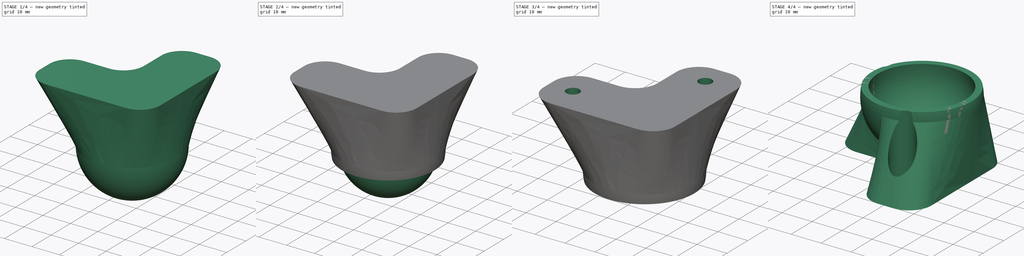
[diagram: build sequence overview — one tinted view per stage of 4, left to right]
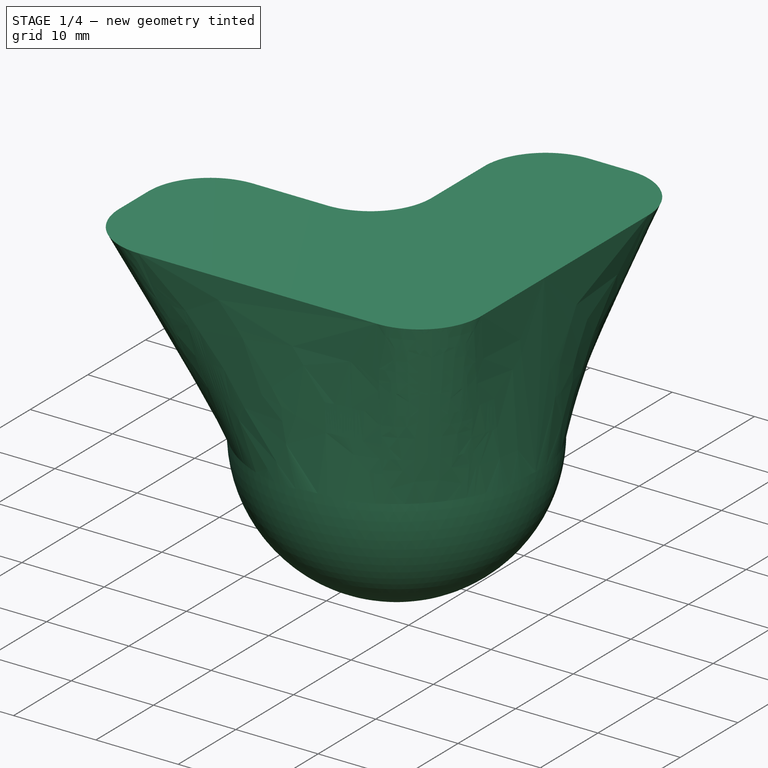
[diagram: stage 1 of 4 — iso view after this stage's code; geometry added in this stage tinted green]
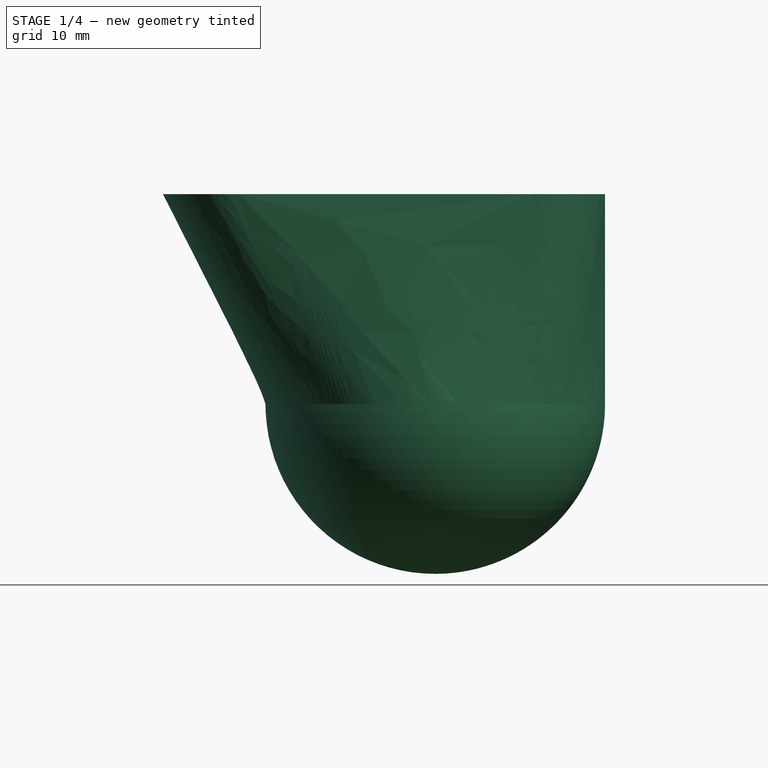
[diagram: stage 1 of 4 — front view after this stage's code; geometry added in this stage tinted green]
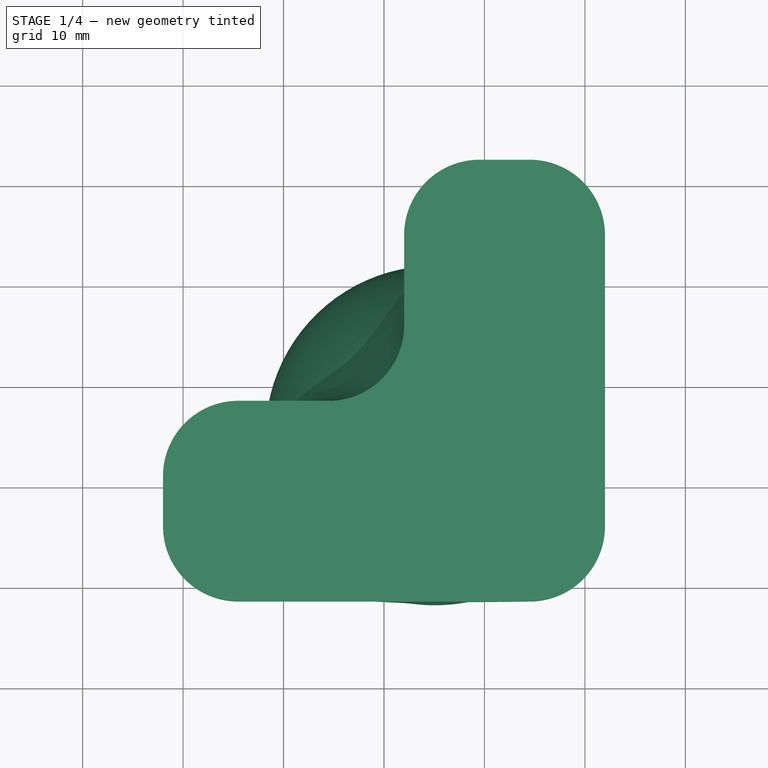
[diagram: stage 1 of 4 — top view after this stage's code; geometry added in this stage tinted green]
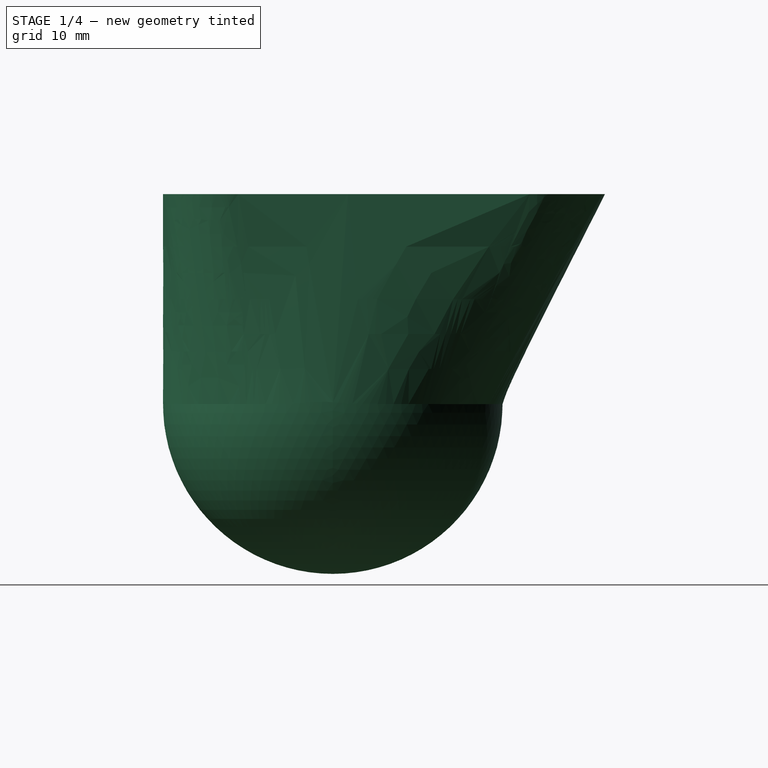
[diagram: stage 1 of 4 — right view after this stage's code; geometry added in this stage tinted green]
FCSTD DOCUMENT  (FreeCAD 0.16R6712 (Git))
Label: RubberBallFoot_2020_90
License: All rights reserved
LicenseURL: http://en.wikipedia.org/wiki/All_rights_reserved
objects: Sketcher::SketchObject×4, Part::Cut×4, Part::Sphere×2, Spreadsheet::Sheet×2, PartDesign::Pad×2, Part::Box×1, Part::Loft×1, Part::MultiFuse×1, Part::FeaturePython×1
note: 18 computed .brp shape members not serialized (recipe doc carries the construction recipe); baked Part::Feature solids carry a one-line shape summary decoded from their .brp

FEATURE [Part::Sphere] Sphere
  Angle1 = -90
  Angle2 = 90
  Angle3 = 360
  Placement = pos=(5.1,-5.1,0) rot=(0,0,1;0rad)
  Radius = 16.9
  expr: Placement.Base.y = -Calc.BallOffset
  expr: Placement.Base.x = Calc.BallOffset
  expr: Radius = Spreadsheet.BallRadius + Spreadsheet.WallThickness
FEATURE [Sketcher::SketchObject] Sketch  label="Circle"
  expr: Constraints[0] = Spreadsheet.BallRadius + Spreadsheet.WallThickness - 0.001
  expr: Constraints[1] = Calc.BallOffset
  expr: Constraints[2] = Calc.BallOffset
  sketch-geometry (1):
    g0: Circle CenterX=5.1 CenterY=-5.1 CenterZ=0 NormalX=0 NormalY=0 NormalZ=1 Radius=16.899
  constraints (3):
    c: Radius(g0) = 16.899
    c: DistanceY(g0,g-1) = 5.1
    c: DistanceX(g-1,g0) = 5.1
FEATURE [Sketcher::SketchObject] Sketch001  label="Rectangle"
  Placement = pos=(0,0,20.9) rot=(0,0,1;0rad)
  expr: Constraints[17] = (Data.ProfileSize - 5) / 2
  expr: Placement.Base.z = Spreadsheet.BallRadius + Spreadsheet.WallThickness + Spreadsheet.ExtraHeight
  sketch-geometry (14):
    g0: LineSegment StartX=22 StartY=14.5 StartZ=0 EndX=22 EndY=-14.5 EndZ=0
    g1: LineSegment StartX=14.5 StartY=-22 StartZ=0 EndX=-14.5 EndY=-22 EndZ=0
    g2: LineSegment StartX=-22 StartY=-14.5 StartZ=0 EndX=-22 EndY=-9.5 EndZ=0
    g3: LineSegment StartX=-14.5 StartY=-2 StartZ=0 EndX=-5.5 EndY=-2 EndZ=0
    g4: LineSegment StartX=2 StartY=5.5 StartZ=0 EndX=2 EndY=14.5 EndZ=0
    g5: LineSegment StartX=9.5 StartY=22 StartZ=0 EndX=14.5 EndY=22 EndZ=0
    g6: ArcOfCircle CenterX=14.5 CenterY=14.5 CenterZ=0 NormalX=0 NormalY=0 NormalZ=1 Radius=7.5 StartAngle=0 EndAngle=1.5708
    g7: ArcOfCircle CenterX=9.5 CenterY=14.5 CenterZ=0 NormalX=0 NormalY=0 NormalZ=1 Radius=7.5 StartAngle=1.5708 EndAngle=3.14159
    g8: ArcOfCircle CenterX=-5.5 CenterY=5.5 CenterZ=0 NormalX=0 NormalY=0 NormalZ=1 Radius=7.5 StartAngle=4.71239 EndAngle=6.28319
    g9: ArcOfCircle CenterX=-14.5 CenterY=-9.5 CenterZ=0 NormalX=0 NormalY=0 NormalZ=1 Radius=7.5 StartAngle=1.5708 EndAngle=3.14159
    g10: ArcOfCircle CenterX=-14.5 CenterY=-14.5 CenterZ=0 NormalX=0 NormalY=0 NormalZ=1 Radius=7.5 StartAngle=3.14159 EndAngle=4.71239
    g11: ArcOfCircle CenterX=14.5 CenterY=-14.5 CenterZ=0 NormalX=0 NormalY=0 NormalZ=1 Radius=7.5 StartAngle=4.71239 EndAngle=6.28319
    g12: LineSegment [constr] StartX=2 StartY=14.5 StartZ=0 EndX=22 EndY=14.5 EndZ=0
    g13: LineSegment [constr] StartX=-14.5 StartY=-22 StartZ=0 EndX=-14.5 EndY=-2 EndZ=0
  constraints (33):
    c: Equal(g0,g1)
    c: Vertical(g2)
    c: Horizontal(g3)
    c: Vertical(g4)
    c: Horizontal(g5)
    c: Tangent(g0,g6) = 1.5708
    c: Tangent(g5,g6) = 1.5708
    c: Tangent(g4,g7) = 1.5708
    c: Tangent(g5,g7) = 1.5708
    c: Tangent(g3,g8) = -1.5708
    c: Tangent(g4,g8) = -1.5708
    c: Tangent(g2,g9) = 1.5708
    c: Tangent(g3,g9) = 1.5708
    c: Tangent(g1,g10) = 1.5708
    c: Tangent(g2,g10) = 1.5708
    c: Tangent(g0,g11) = 1.5708
    c: Tangent(g1,g11) = 1.5708
    c: Radius(g11) = 7.5
    c: Equal(g11,g6)
    c: Equal(g6,g7)
    c: Equal(g7,g8)
    c: Equal(g8,g9)
    c: Equal(g9,g10)
    c: DistanceX(g2,g0) = 44
    c: Symmetric(g1,g1,g-2)
    c: Symmetric(g0,g0,g-1)
    c: Equal(g1,g0)
    c: Coincident(g12,g4)
    c: Coincident(g12,g0)
    c: Coincident(g13,g1)
    c: Coincident(g13,g3)
    c: DistanceY(g13,g13) = 20
    c: Equal(g13,g12)
FEATURE [Part::Loft] Loft
  Closed = false
  Ruled = false
  Sections = -> [Sketch,Sketch001]
  Solid = true
FEATURE [Part::MultiFuse] Fusion
  Shapes = -> [Loft,Sphere]
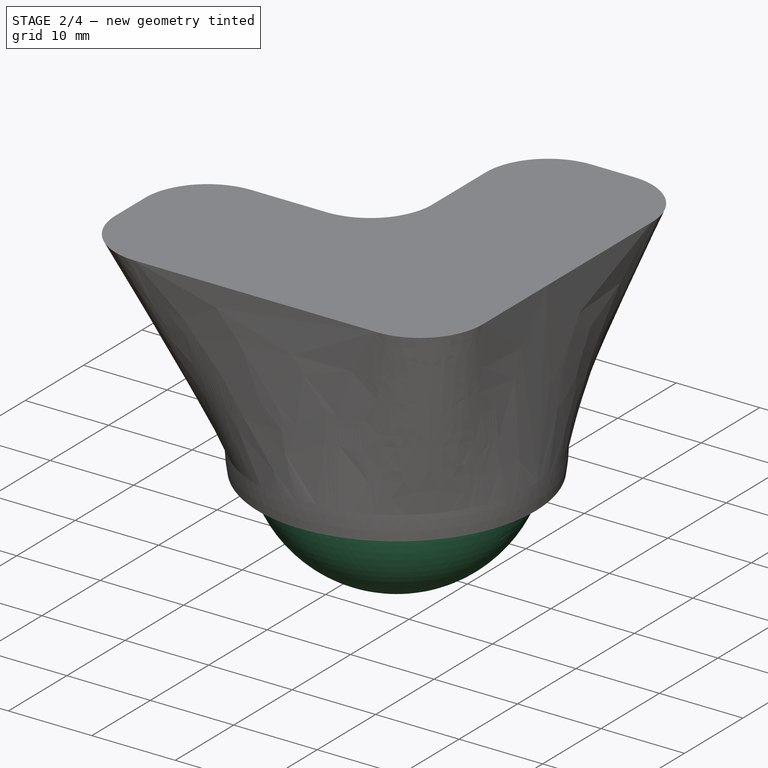
[diagram: stage 2 of 4 — iso view after this stage's code; geometry added in this stage tinted green]
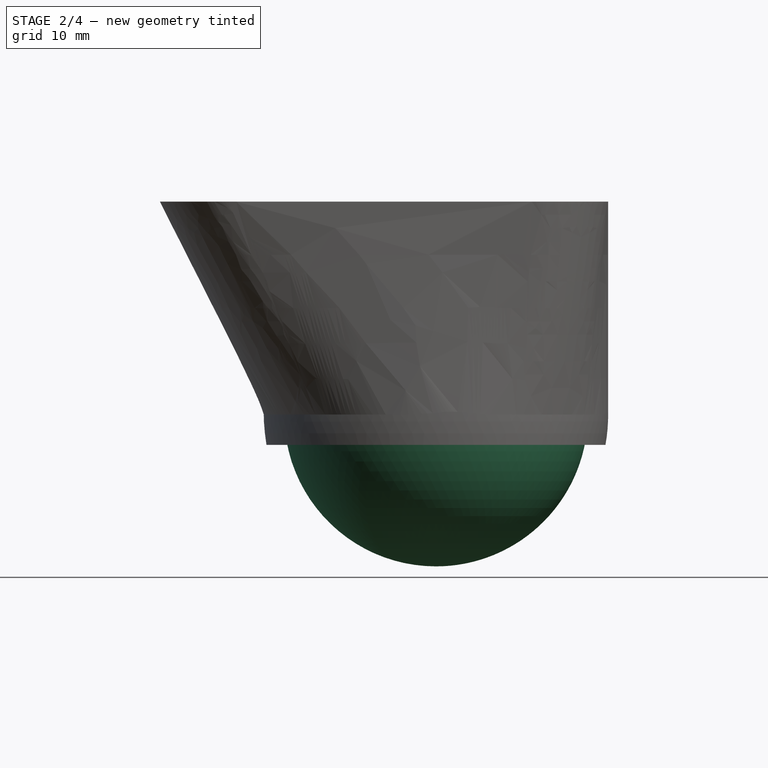
[diagram: stage 2 of 4 — front view after this stage's code; geometry added in this stage tinted green]
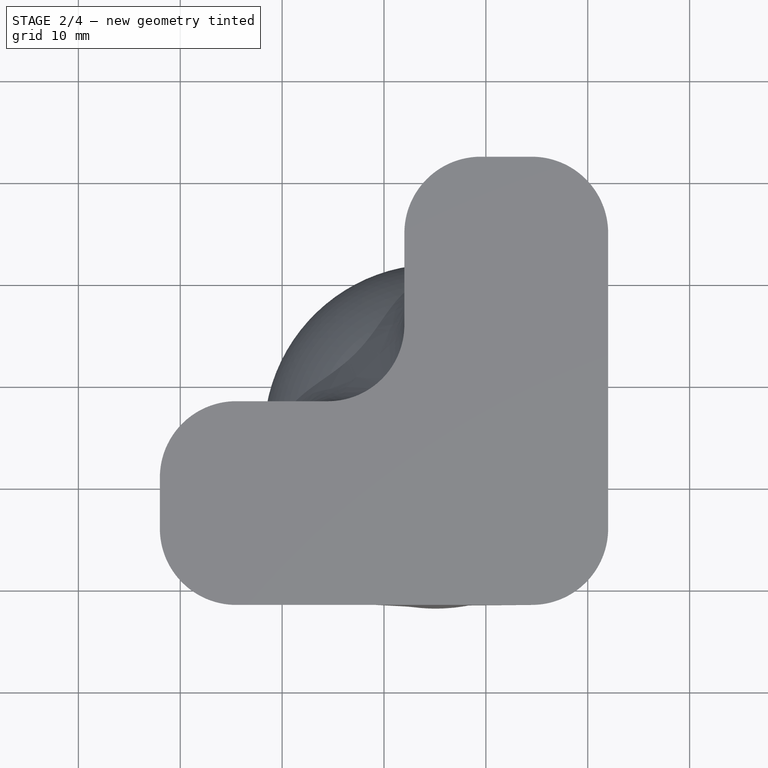
[diagram: stage 2 of 4 — top view after this stage's code; geometry added in this stage tinted green]
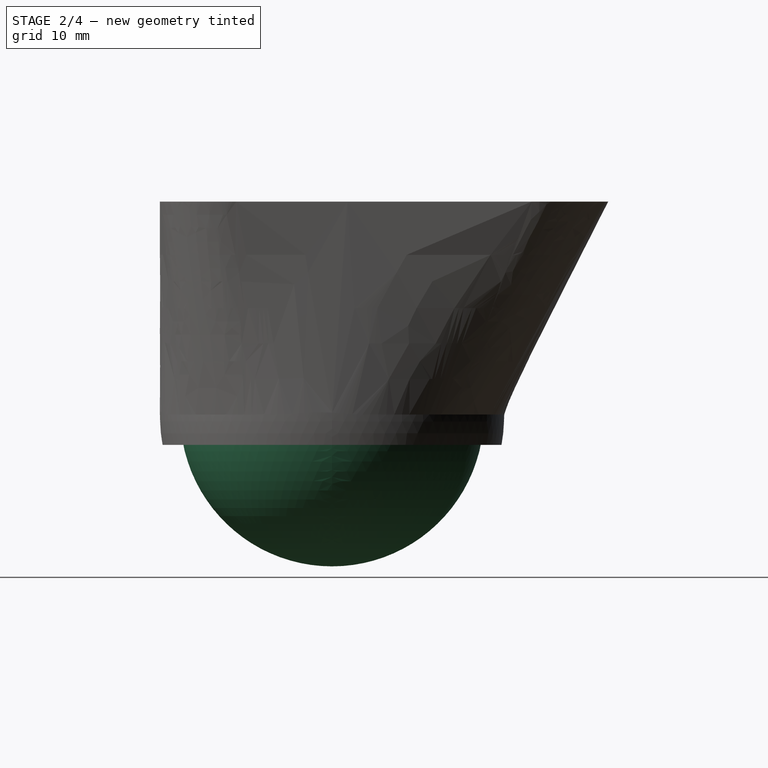
[diagram: stage 2 of 4 — right view after this stage's code; geometry added in this stage tinted green]
FEATURE [Part::Box] Box  label="Cube"
  Height = 33.8
  Length = 33.8
  Placement = pos=(-11.8,-22,-36.78) rot=(0,0,1;0rad)
  Width = 33.8
  expr: Placement.Base.y = -Spreadsheet.BallRadius - Spreadsheet.WallThickness - Calc.BallOffset
  expr: Placement.Base.x = -Spreadsheet.BallRadius - Spreadsheet.WallThickness + Calc.BallOffset
  expr: Width = (Spreadsheet.BallRadius + Spreadsheet.WallThickness) * 2
  expr: Length = (Spreadsheet.BallRadius + Spreadsheet.WallThickness) * 2
  expr: Height = (Spreadsheet.BallRadius + Spreadsheet.WallThickness) * 2
  expr: Placement.Base.z = Calc.CubeOffset
FEATURE [Part::Sphere] Sphere001
  Angle1 = -90
  Angle2 = 90
  Angle3 = 360
  Placement = pos=(5.1,-5.1,0) rot=(0,0,1;0rad)
  Radius = 14.9
  expr: Placement.Base.y = -Calc.BallOffset
  expr: Placement.Base.x = Calc.BallOffset
  expr: Radius = Spreadsheet.BallRadius
FEATURE [Part::Cut] Cut
  Base = -> Fusion
  Tool = -> Box
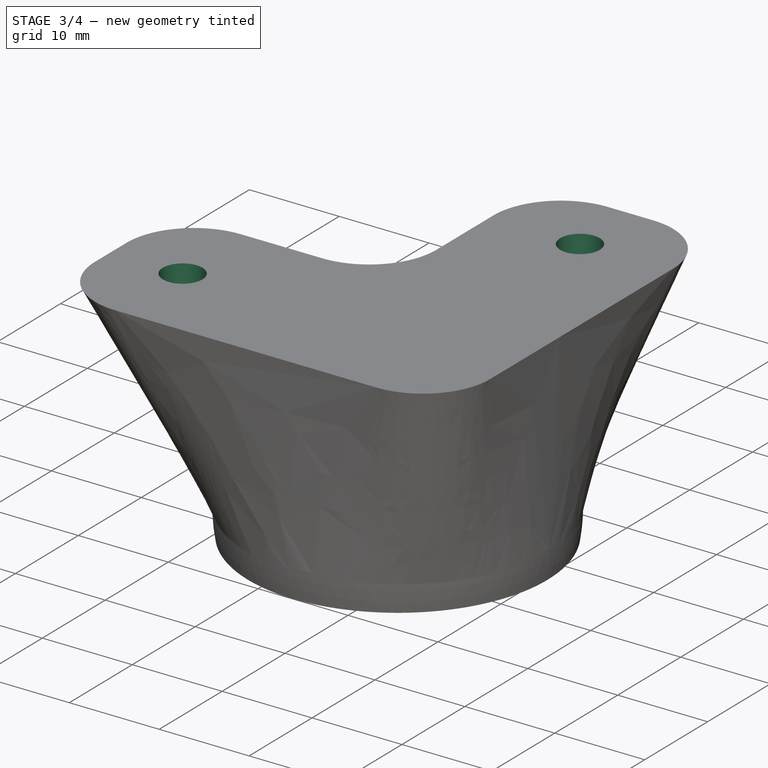
[diagram: stage 3 of 4 — iso view after this stage's code; geometry added in this stage tinted green]
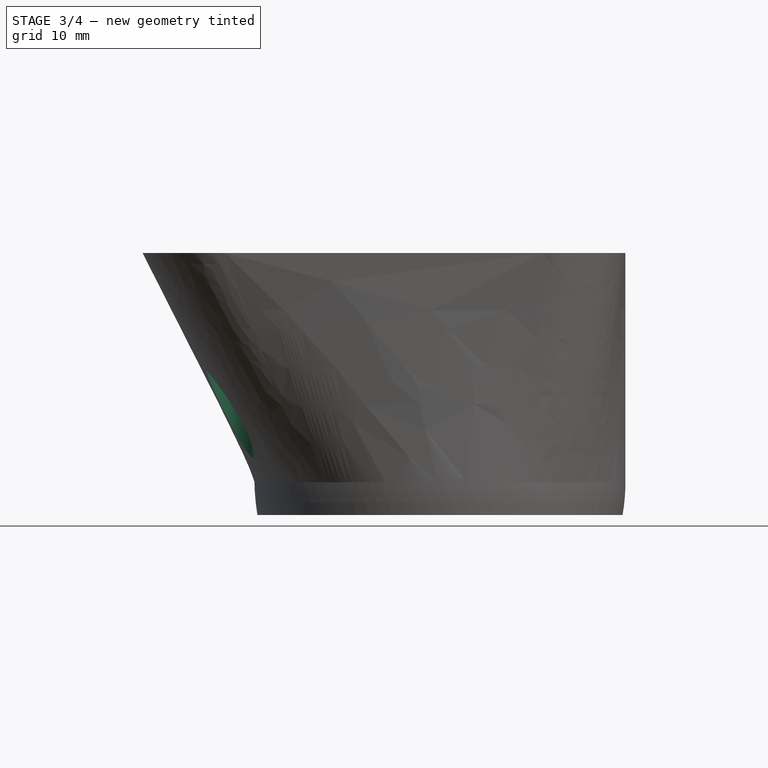
[diagram: stage 3 of 4 — front view after this stage's code; geometry added in this stage tinted green]
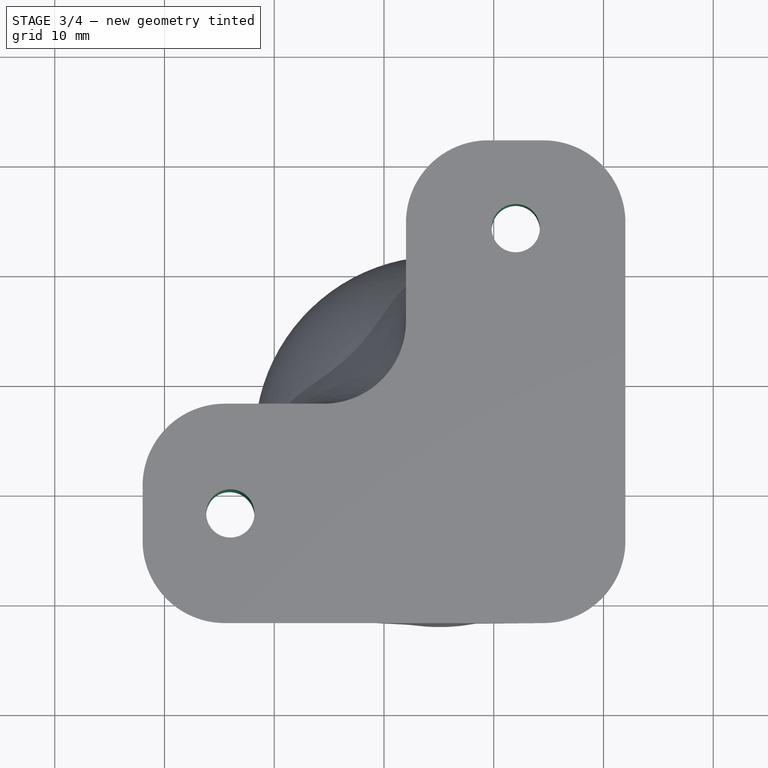
[diagram: stage 3 of 4 — top view after this stage's code; geometry added in this stage tinted green]
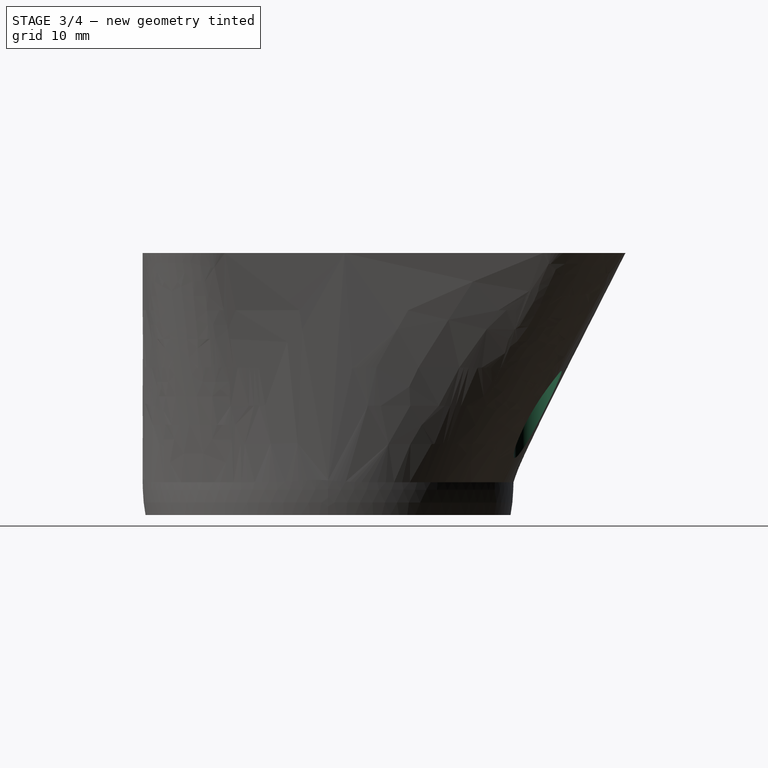
[diagram: stage 3 of 4 — right view after this stage's code; geometry added in this stage tinted green]
FEATURE [Sketcher::SketchObject] Sketch004  label="ScrewHoles"
  Placement = pos=(0,0,-2.98) rot=(0,0,1;0rad)
  expr: Constraints[18] = Spreadsheet.HoleOffset
  expr: Constraints[14] = Calc.BaseSize
  expr: Placement.Base.z = -Spreadsheet.BallRadius * Spreadsheet.cover / 100
  expr: Constraints[16] = Spreadsheet.ProfileSize / 2
  sketch-geometry (6):
    g0: Circle CenterX=12 CenterY=14 CenterZ=0 NormalX=0 NormalY=0 NormalZ=1 Radius=2.2
    g1: Circle CenterX=-14 CenterY=-12 CenterZ=0 NormalX=0 NormalY=0 NormalZ=1 Radius=2.2
    g2: LineSegment [constr] StartX=-22 StartY=22 StartZ=0 EndX=22 EndY=22 EndZ=0
    g3: LineSegment [constr] StartX=22 StartY=22 StartZ=0 EndX=22 EndY=-22 EndZ=0
    g4: LineSegment [constr] StartX=22 StartY=-22 StartZ=0 EndX=-22 EndY=-22 EndZ=0
    g5: LineSegment [constr] StartX=-22 StartY=-22 StartZ=0 EndX=-22 EndY=22 EndZ=0
  constraints (19):
    c: Equal(g0,g1)
    c: Radius(g0) = 2.2
    c: Coincident(g2,g3)
    c: Coincident(g3,g4)
    c: Coincident(g4,g5)
    c: Coincident(g5,g2)
    c: Horizontal(g2)
    c: Horizontal(g4)
    c: Vertical(g3)
    c: Vertical(g5)
    c: Symmetric(g2,g3,g-1)
    c: Equal(g2,g5)
    c: Equal(g5,g3)
    c: Equal(g3,g4)
    c: DistanceX(g2,g2) = 44
    c: DistanceY(g0,g2) = 8
    c: DistanceY(g3,g1) = 10
    c: DistanceX(g0,g2) = 10
    c: DistanceX(g4,g1) = 8
FEATURE [PartDesign::Pad] Pad001
  Length = 23.88
  Length2 = 100
  Placement = pos=(0,0,-2.98) rot=(0,0,1;0rad)
  Sketch = -> Sketch004
  Type = 0
  expr: Length = Calc.TotalHeight
FEATURE [Part::Cut] Cut001
  Base = -> Cut
  Tool = -> Sphere001
FEATURE [Part::Cut] Cut002
  Base = -> Cut001
  Tool = -> Pad001
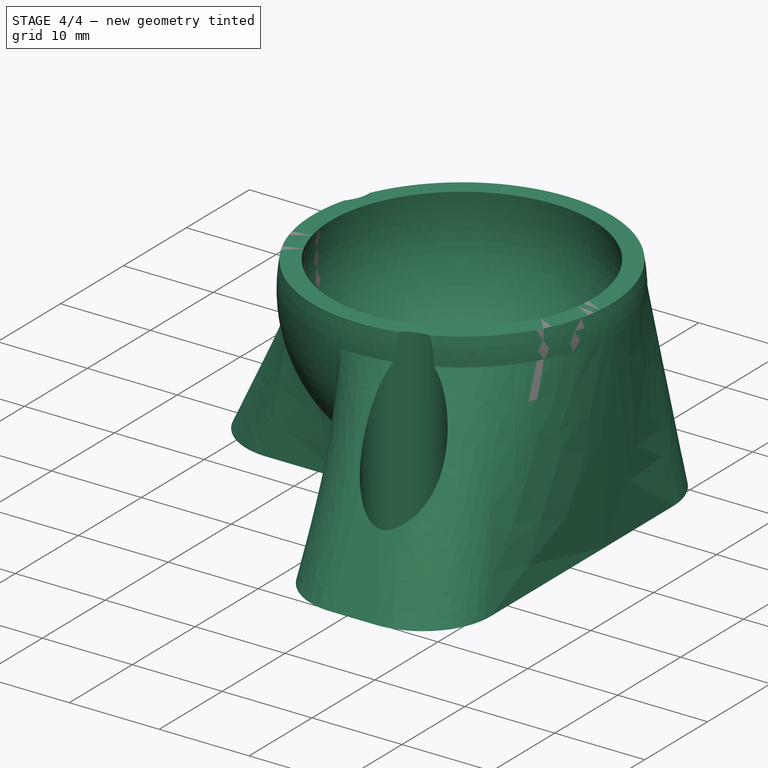
[diagram: stage 4 of 4 — iso view after this stage's code; geometry added in this stage tinted green]
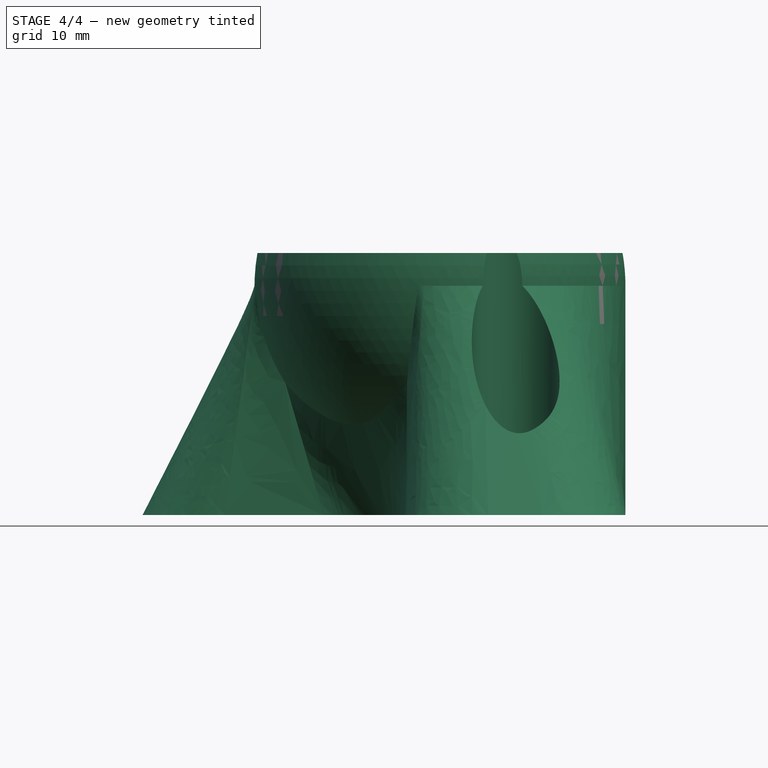
[diagram: stage 4 of 4 — front view after this stage's code; geometry added in this stage tinted green]
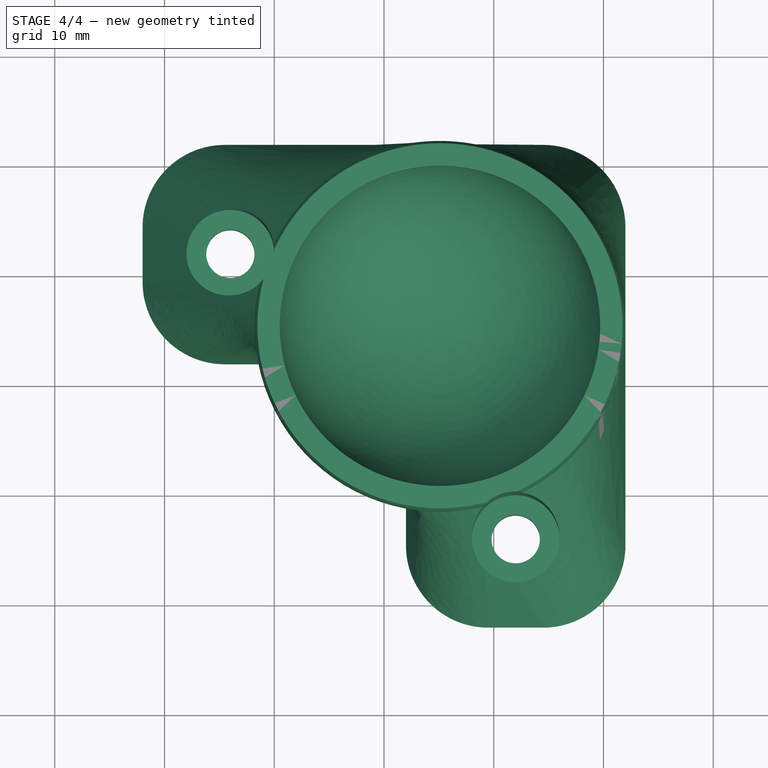
[diagram: stage 4 of 4 — top view after this stage's code; geometry added in this stage tinted green]
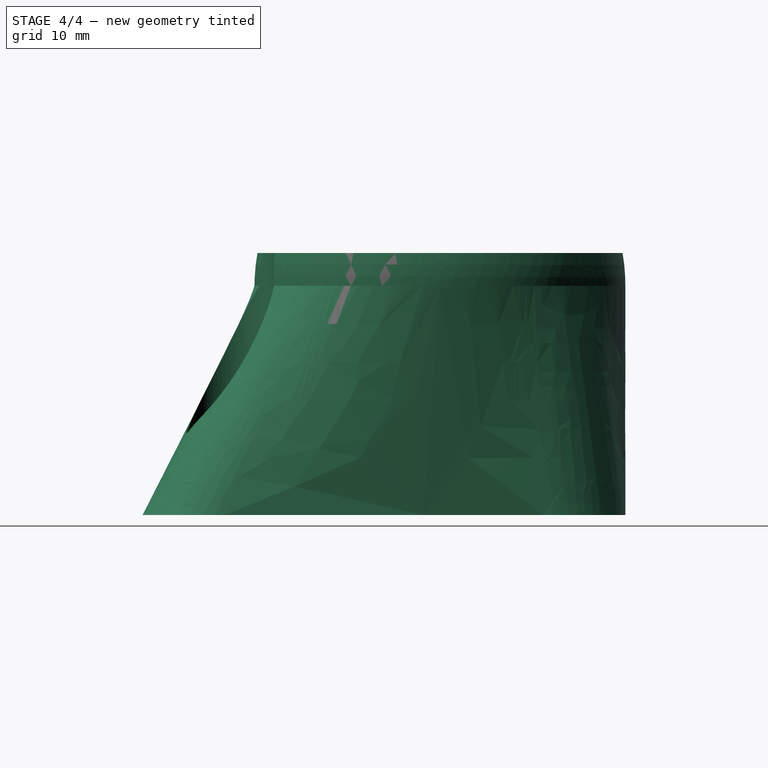
[diagram: stage 4 of 4 — right view after this stage's code; geometry added in this stage tinted green]
FEATURE [Sketcher::SketchObject] Sketch003  label="HeadHoles"
  Placement = pos=(0,0,-2.98) rot=(0,0,1;0rad)
  expr: Constraints[18] = Spreadsheet.ProfileSize / 2
  expr: Constraints[17] = Spreadsheet.HoleOffset
  expr: Constraints[14] = Calc.BaseSize
  expr: Placement.Base.z = -Spreadsheet.BallRadius * Spreadsheet.cover / 100
  expr: Constraints[16] = Spreadsheet.ProfileSize / 2
  sketch-geometry (6):
    g0: Circle CenterX=12 CenterY=14 CenterZ=0 NormalX=0 NormalY=0 NormalZ=1 Radius=4
    g1: Circle CenterX=-14 CenterY=-12 CenterZ=0 NormalX=0 NormalY=0 NormalZ=1 Radius=4
    g2: LineSegment [constr] StartX=-22 StartY=22 StartZ=0 EndX=22 EndY=22 EndZ=0
    g3: LineSegment [constr] StartX=22 StartY=22 StartZ=0 EndX=22 EndY=-22 EndZ=0
    g4: LineSegment [constr] StartX=22 StartY=-22 StartZ=0 EndX=-22 EndY=-22 EndZ=0
    g5: LineSegment [constr] StartX=-22 StartY=-22 StartZ=0 EndX=-22 EndY=22 EndZ=0
  constraints (19):
    c: Equal(g0,g1)
    c: Radius(g0) = 4
    c: Coincident(g2,g3)
    c: Coincident(g3,g4)
    c: Coincident(g4,g5)
    c: Coincident(g5,g2)
    c: Horizontal(g2)
    c: Horizontal(g4)
    c: Vertical(g3)
    c: Vertical(g5)
    c: Equal(g2,g5)
    c: Equal(g5,g4)
    c: Equal(g4,g3)
    c: Symmetric(g2,g3,g-1)
    c: DistanceX(g2,g2) = 44
    c: DistanceY(g0,g2) = 8
    c: DistanceY(g3,g1) = 10
    c: DistanceX(g4,g1) = 8
    c: DistanceX(g0,g2) = 10
FEATURE [Spreadsheet::Sheet] Spreadsheet  label="Data"
  cells = B2=BallRadius; C2(BallRadius)=14.9; B3=WallThickness; C3(WallThickness)=2; B4=ExtraHeight; C4(ExtraHeight)=4; B5=Cover_%; C5(cover)=20; B6=ScrewHeight; C6(ScrewHeight)=4; B7=BaseSizeExtra; C7(BaseSizeExtra)=10.2; B8=ProfileSize; C8(ProfileSize)=20; B9=HoleOffset; C9(HoleOffset)=8; B10=Assymetric; C10(Asymmetric)=1
FEATURE [Spreadsheet::Sheet] Spreadsheet001  label="Calc"
  cells = A3=CubeOffset; B3(CubeOffset)==-2 * (Data.BallRadius + Data.WallThickness) - Data.BallRadius * Data.cover / 100; A4=HeadHoleLength; B4(HeadHoleLength)==Data.BallRadius * Data.cover / 100 + Data.BallRadius + Data.WallThickness + Data.ExtraHeight - Data.ScrewHeight; A5=TotalHeight; B5(TotalHeight)==Data.BallRadius * Data.cover / 100 + Data.BallRadius + Data.WallThickness + Data.ExtraHeight; A6=BaseSize; B6(BaseSize)==(Data.BallRadius + Data.WallThickness) * 2 + Data.BaseSizeExtra; A7=BallOffset; B7(BallOffset)==Data.BaseSizeExtra / 2 * Data.Asymmetric
FEATURE [PartDesign::Pad] Pad
  Length = 19.88
  Length2 = 100
  Placement = pos=(0,0,-2.98) rot=(0,0,1;0rad)
  Sketch = -> Sketch003
  Type = 0
  expr: Length = Calc.HeadHoleLength
FEATURE [Part::Cut] Cut003  label="Foot"
  Base = -> Cut002
  Tool = -> Pad
FEATURE [Part::FeaturePython] Clone  label="Foot_rotated"  # Draft clone (typed FeaturePython)
  Objects = -> [Cut003]
  Placement = pos=(0,0,0) rot=(1,0,0;3.14159rad)
  Scale = (1,1,1)
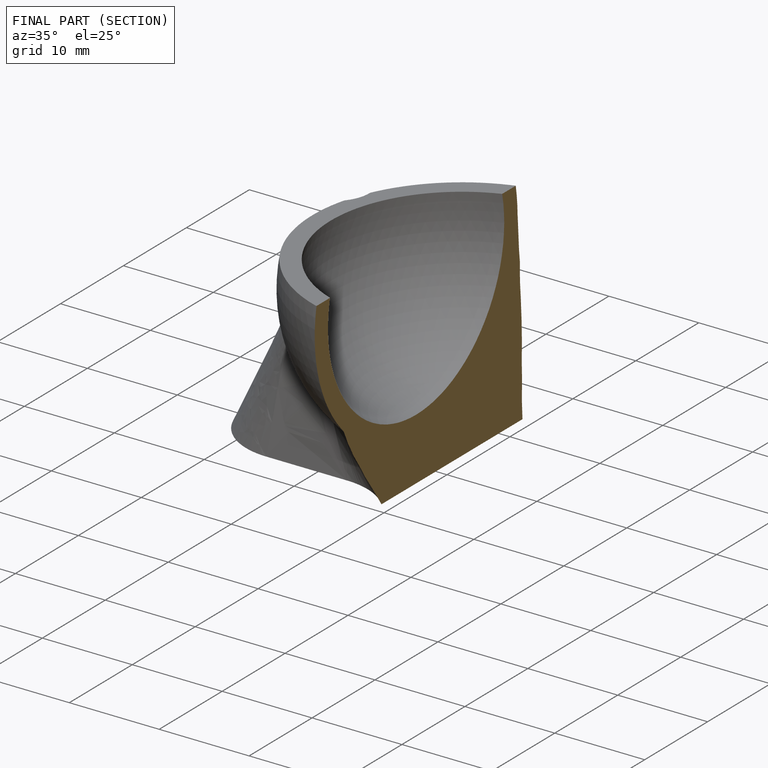
[diagram: finished part — half-section view (interior)]
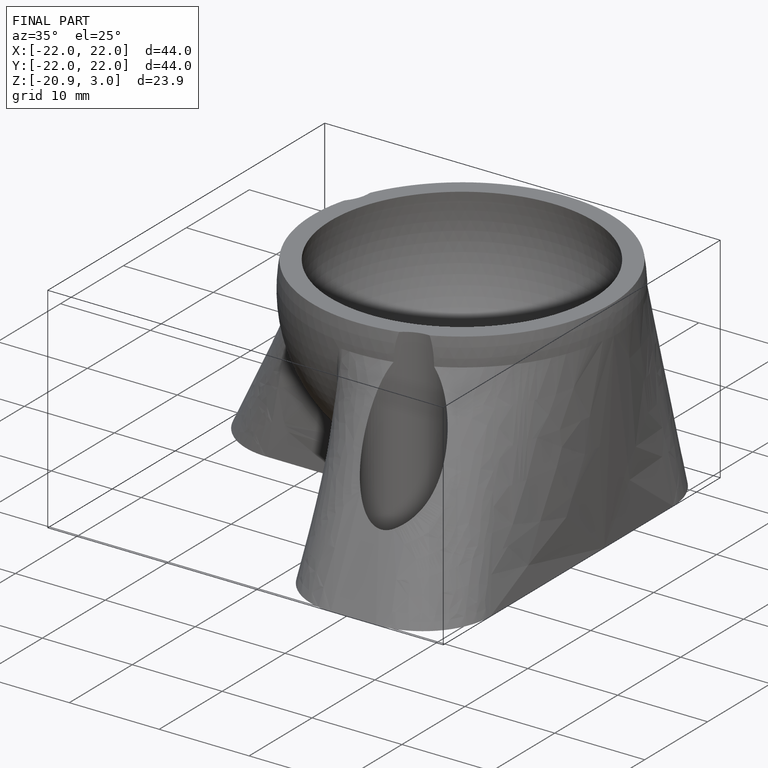
[diagram: finished part — iso view with bounding-box wireframe]
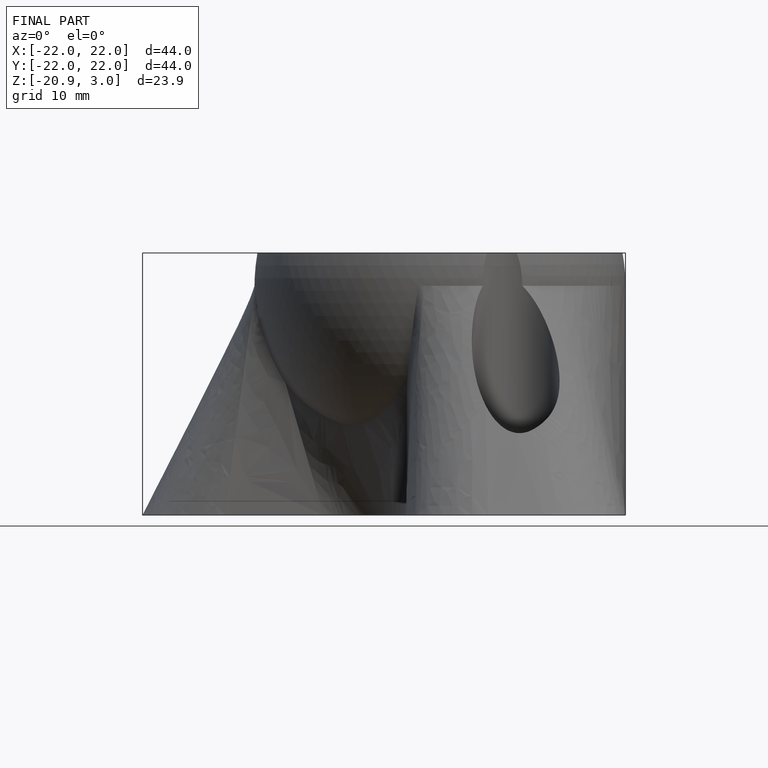
[diagram: finished part — front view with bounding-box wireframe]
